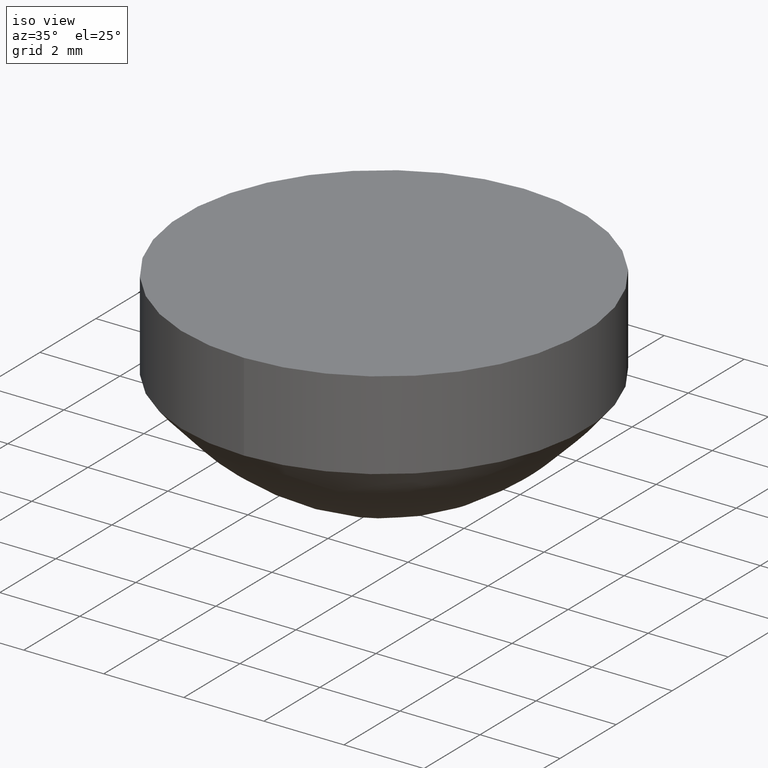
[diagram: clean part render]
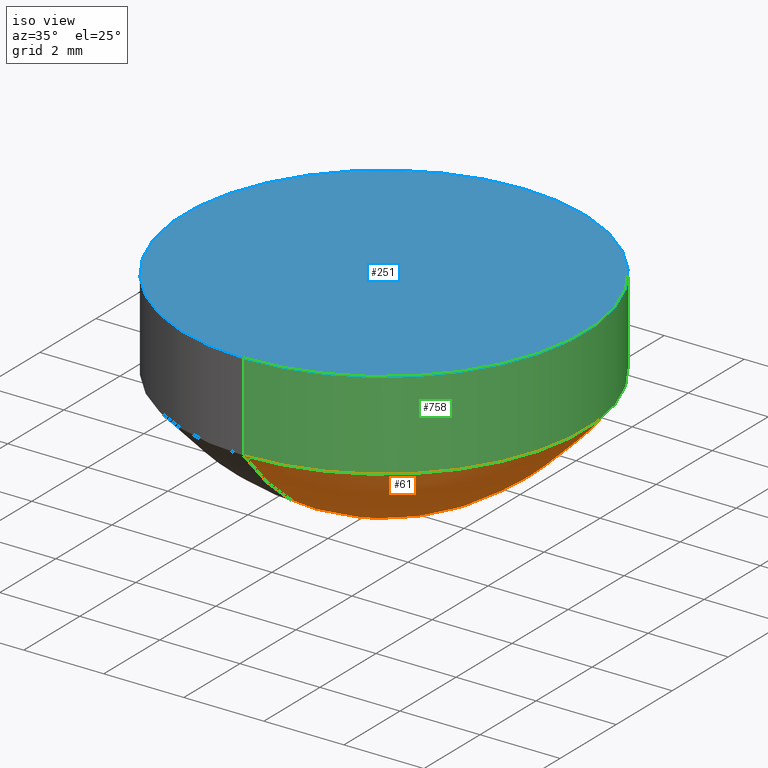
[diagram: same view with three faces highlighted in distinct colors, each labeled with its STEP entity id]
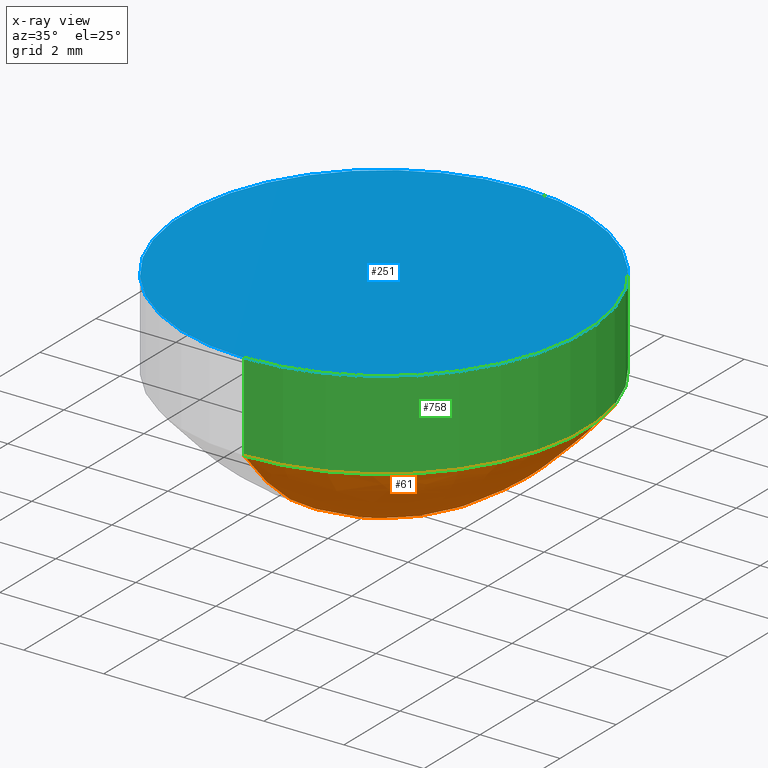
[diagram: x-ray of the same camera — body ghosted, the three highlighted faces saturated]
A machine part, iso view with three faces highlighted in distinct colors.
The next image is the same camera in x-ray (body ghosted, the three faces saturated) — at least one of them is partly hidden behind the body in this view.
Their STEP definitions:

[orange] entity #61 — the highlighted face is a freeform B-spline surface patch.
#1 = CARTESIAN_POINT ( 'NONE',  ( 3.954588622246652868E-16, 1.614583333333329929, 0.2612154173146479796 ) ) ;
#6 = CARTESIAN_POINT ( 'NONE',  ( 1.666666666666665630, 0.8333333333333324822, 0.06877212295435830569 ) ) ;
#8 = CARTESIAN_POINT ( 'NONE',  ( 9.583333333333339255, 4.791666666666666963, 2.539913410714560005 ) ) ;
#11 = CARTESIAN_POINT ( 'NONE',  ( -1.977294311123326434E-16, -1.614583333333329929, 0.2612154173146479796 ) ) ;
#12 = CARTESIAN_POINT ( 'NONE',  ( 1.224646799147353256E-15, 5.000000000000000000, 2.793147640223440309 ) ) ;
#16 = CARTESIAN_POINT ( 'NONE',  ( 0.000000000000000000, 4.635416666666669627, 2.360148127938519913 ) ) ;
#18 = CARTESIAN_POINT ( 'NONE',  ( -4.719992871713760363E-16, -3.854166666666669627, 1.579764289203899885 ) ) ;
#23 = CARTESIAN_POINT ( 'NONE',  ( 0.4166666666666659635, 0.2083333333333328985, 0.004033350387674640436 ) ) ;
#25 = CARTESIAN_POINT ( 'NONE',  ( -4.911343934080535018E-16, -4.010416666666669627, 1.720747009197980182 ) ) ;
#26 = CARTESIAN_POINT ( 'NONE',  ( -2.806482248046021207E-16, -2.291666666666669627, 0.5330940863590959422 ) ) ;
#27 = CARTESIAN_POINT ( 'NONE',  ( 0.2083333333333338977, -0.1041666666666670182, 0.0008064525446619920856 ) ) ;
#29 = CARTESIAN_POINT ( 'NONE',  ( 7.395833333333339255, 3.697916666666668295, 1.445918352819189900 ) ) ;
#30 = CARTESIAN_POINT ( 'NONE',  ( -5.995666620825578906E-16, -4.895833333333330373, 2.664403828816089614 ) ) ;
#32 = CARTESIAN_POINT ( 'NONE',  ( 0.4166666666666659080, -0.2083333333333330650, 0.004033350387674640436 ) ) ;
#34 = CARTESIAN_POINT ( 'NONE',  ( 6.354166666666658081, -3.177083333333330817, 1.048866762044710077 ) ) ;
#35 = CARTESIAN_POINT ( 'NONE',  ( -3.380535435146343200E-16, -2.760416666666669627, 0.7823694013034590000 ) ) ;
#36 = CARTESIAN_POINT ( 'NONE',  ( 0.000000000000000000, 4.947916666666669627, 2.728056462970759988 ) ) ;
#38 = CARTESIAN_POINT ( 'NONE',  ( 9.057283618693975359E-16, 3.697916666666669627, 1.445918352819189900 ) ) ;
#39 = CARTESIAN_POINT ( 'NONE',  ( -3.954588622246665194E-16, -3.229166666666669627, 1.085289345095020064 ) ) ;
#43 = CARTESIAN_POINT ( 'NONE',  ( 7.143772995026234725E-16, 2.916666666666669627, 0.8771974430765130393 ) ) ;
#44 = CARTESIAN_POINT ( 'NONE',  ( -4.464858121891388568E-16, -3.645833333333330373, 1.402859705147299962 ) ) ;
#46 = CARTESIAN_POINT ( 'NONE',  ( 0.000000000000000000, 2.447916666666670071, 0.6104443979704369250 ) ) ;
#48 = CARTESIAN_POINT ( 'NONE',  ( 6.761070870292686401E-16, 2.760416666666669627, 0.7823694013034590000 ) ) ;
#52 = CARTESIAN_POINT ( 'NONE',  ( 5.208333333333340143, 2.604166666666668739, 0.6934955115667149617 ) ) ;
#57 = CARTESIAN_POINT ( 'NONE',  ( 0.000000000000000000, 0.2604166666666670182, 0.006453795416485589957 ) ) ;
#58 = CARTESIAN_POINT ( 'NONE',  ( -3.508102810057518251E-16, -2.864583333333329929, 0.8449215409896569939 ) ) ;
#61 = ADVANCED_FACE ( 'NONE', ( #935 ), #576, .T. ) ;
#65 = CARTESIAN_POINT ( 'NONE',  ( 6.633503495381488178E-16, 2.708333333333329929, 0.7520931647728069658 ) ) ;
#66 = DIRECTION ( 'NONE',  ( 0.000000000000000000, 0.000000000000000000, 1.000000000000000000 ) ) ;
#69 = CARTESIAN_POINT ( 'NONE',  ( 2.708333333333340143, 1.354166666666669405, 0.1830055619264369937 ) ) ;
#73 = CARTESIAN_POINT ( 'NONE',  ( 3.645833333333340143, 1.822916666666669405, 0.3341646850982459838 ) ) ;
#75 = CARTESIAN_POINT ( 'NONE',  ( 9.479166666666658969, -4.739583333333331261, 2.479075565606579268 ) ) ;
#78 = CARTESIAN_POINT ( 'NONE',  ( 3.645833333333338810, -1.822916666666670737, 0.3341646850982459838 ) ) ;
#80 = CARTESIAN_POINT ( 'NONE',  ( 1.097079424236171402E-15, 4.479166666666669627, 2.188558308208239822 ) ) ;
#83 = CARTESIAN_POINT ( 'NONE',  ( -1.020538999289460554E-16, -0.8333333333333329263, 0.06877212295435830569 ) ) ;
#88 = CARTESIAN_POINT ( 'NONE',  ( 1.658375873845373031E-16, 0.6770833333333329263, 0.04525941702231930236 ) ) ;
#92 = CARTESIAN_POINT ( 'NONE',  ( 1.403241124023009618E-16, 0.5729166666666669627, 0.03230819229490249772 ) ) ;
#94 = CARTESIAN_POINT ( 'NONE',  ( 8.020833333333339255, 4.010416666666667851, 1.720747009197980182 ) ) ;
#98 = CARTESIAN_POINT ( 'NONE',  ( 8.929716243782776150E-17, 0.3645833333333330373, 0.01291194472337760073 ) ) ;
#100 = CARTESIAN_POINT ( 'NONE',  ( 7.395833333333337478, -3.697916666666670960, 1.445918352819189900 ) ) ;
#101 = CARTESIAN_POINT ( 'NONE',  ( -3.508102810057518251E-16, -2.864583333333329929, 0.8449215409896569939 ) ) ;
#104 = CARTESIAN_POINT ( 'NONE',  ( -3.189184372779570394E-17, -0.2604166666666670182, 0.006453795416485589957 ) ) ;
#107 = CARTESIAN_POINT ( 'NONE',  ( 9.439985743427520725E-16, 3.854166666666669627, 1.579764289203899885 ) ) ;
#110 = CARTESIAN_POINT ( 'NONE',  ( -6.378368745559127692E-18, -0.05208333333333330095, 0.000000000000000000 ) ) ;
#112 = CARTESIAN_POINT ( 'NONE',  ( 6.979166666666658969, 3.489583333333328152, 1.278226996112129976 ) ) ;
#114 = CARTESIAN_POINT ( 'NONE',  ( 0.000000000000000000, 3.333333333333329929, 1.160287938878900027 ) ) ;
#116 = CARTESIAN_POINT ( 'NONE',  ( 8.541666666666660745, 4.270833333333328596, 1.972133565051860105 ) ) ;
#117 = CARTESIAN_POINT ( 'NONE',  ( -1.211890061656234470E-16, -0.9895833333333330373, 0.09721789164745828216 ) ) ;
#120 = CARTESIAN_POINT ( 'NONE',  ( 7.016205620115036502E-16, 2.864583333333329929, 0.8449215409896569939 ) ) ;
#121 = CARTESIAN_POINT ( 'NONE',  ( -1.785943248756552765E-16, -1.458333333333329929, 0.2125775925363989904 ) ) ;
#123 = EDGE_CURVE ( 'NONE', #237, #259, #645, .T. ) ;
#124 = CARTESIAN_POINT ( 'NONE',  ( 0.000000000000000000, 1.927083333333329929, 0.3741652083103090276 ) ) ;
#126 = CARTESIAN_POINT ( 'NONE',  ( -2.359996435856874265E-16, -1.927083333333329929, 0.3741652083103090276 ) ) ;
#127 = DIRECTION ( 'NONE',  ( 0.000000000000000000, 1.000000000000000000, 0.000000000000000000 ) ) ;
#129 = CARTESIAN_POINT ( 'NONE',  ( 0.000000000000000000, 0.05208333333333330095, 0.000000000000000000 ) ) ;
#131 = CARTESIAN_POINT ( 'NONE',  ( 5.416666666666658969, -2.708333333333330817, 0.7520931647728069658 ) ) ;
#133 = CARTESIAN_POINT ( 'NONE',  ( 0.000000000000000000, 0.7291666666666670737, 0.05255022102027309683 ) ) ;
#135 = CARTESIAN_POINT ( 'NONE',  ( 4.166666666666660745, 2.083333333333329485, 0.4386370034883719793 ) ) ;
#142 = CARTESIAN_POINT ( 'NONE',  ( 6.378368745559140049E-16, 2.604166666666670071, 0.6934955115667149617 ) ) ;
#145 = CARTESIAN_POINT ( 'NONE',  ( 3.229166666666658969, 1.614583333333328818, 0.2612154173146479241 ) ) ;
#149 = CARTESIAN_POINT ( 'NONE',  ( 2.551347498223661246E-16, 1.041666666666670071, 0.1078014655568300117 ) ) ;
#151 = CARTESIAN_POINT ( 'NONE',  ( -5.612964496092031568E-16, -4.583333333333329485, 2.302058484811909889 ) ) ;
#152 = AXIS2_PLACEMENT_3D ( 'NONE', #821, #66, #127 ) ;
#157 = CARTESIAN_POINT ( 'NONE',  ( 2.083333333333339699, -1.041666666666670293, 0.1078014655568299979 ) ) ;
#159 = CARTESIAN_POINT ( 'NONE',  ( 1.135349636709526136E-15, 4.635416666666669627, 2.360148127938519913 ) ) ;
#163 = CARTESIAN_POINT ( 'NONE',  ( 2.168645373490105526E-16, 0.8854166666666670737, 0.07770321952578769509 ) ) ;
#168 = CARTESIAN_POINT ( 'NONE',  ( -8.291879369226865153E-17, -0.6770833333333329263, 0.04525941702231930236 ) ) ;
#170 = CARTESIAN_POINT ( 'NONE',  ( 1.199133324165115781E-15, 4.895833333333330373, 2.664403828816089614 ) ) ;
#174 = CARTESIAN_POINT ( 'NONE',  ( 1.041666666666666075, 0.5208333333333328152, 0.02664777265347659588 ) ) ;
#178 = CARTESIAN_POINT ( 'NONE',  ( 0.000000000000000000, 4.322916666666670515, 2.024935378494410187 ) ) ;
#180 = CARTESIAN_POINT ( 'NONE',  ( -4.273507059524613913E-16, -3.489583333333330373, 1.278226996112129976 ) ) ;
#181 = CARTESIAN_POINT ( 'NONE',  ( -4.273507059524613913E-16, -3.489583333333330373, 1.278226996112129976 ) ) ;
#183 = CARTESIAN_POINT ( 'NONE',  ( 0.7291666666666659635, -0.3645833333333331483, 0.01291194472337759899 ) ) ;
#185 = CARTESIAN_POINT ( 'NONE',  ( 1.007782261798341915E-15, 4.114583333333330373, 1.818804946892209840 ) ) ;
#186 = CARTESIAN_POINT ( 'NONE',  ( -3.571886497513117363E-16, -2.916666666666669627, 0.8771974430765130393 ) ) ;
#187 = CIRCLE ( 'NONE', #152, 5.000000000000000000 ) ;
#189 = CARTESIAN_POINT ( 'NONE',  ( 0.000000000000000000, 3.020833333333330373, 0.9437969569100039813 ) ) ;
#191 = CARTESIAN_POINT ( 'NONE',  ( 7.909177244493330387E-16, 3.229166666666669627, 1.085289345095020064 ) ) ;
#194 = CARTESIAN_POINT ( 'NONE',  ( 0.000000000000000000, 3.645833333333330373, 1.402859705147299962 ) ) ;
#196 = CARTESIAN_POINT ( 'NONE',  ( 8.674581493960426049E-16, 3.541666666666670071, 1.319014030935950155 ) ) ;
#197 = CARTESIAN_POINT ( 'NONE',  ( -2.742698560590422096E-16, -2.239583333333329929, 0.5085603405870479099 ) ) ;
#201 = CARTESIAN_POINT ( 'NONE',  ( 5.104166666666660745, 2.552083333333329040, 0.6651740967401749138 ) ) ;
#202 = CARTESIAN_POINT ( 'NONE',  ( -5.868099245914404349E-16, -4.791666666666669627, 2.539913410714560005 ) ) ;
#206 = CARTESIAN_POINT ( 'NONE',  ( 0.000000000000000000, 1.458333333333329929, 0.2125775925363989904 ) ) ;
#209 = CARTESIAN_POINT ( 'NONE',  ( 5.104166666666659857, -2.552083333333330817, 0.6651740967401749138 ) ) ;
#210 = CARTESIAN_POINT ( 'NONE',  ( -1.275673749111830315E-17, -0.1041666666666670044, 0.0008064525446619920856 ) ) ;
#214 = CARTESIAN_POINT ( 'NONE',  ( -2.423780123312473869E-16, -1.979166666666669849, 0.3950537073087639905 ) ) ;
#217 = CARTESIAN_POINT ( 'NONE',  ( 0.000000000000000000, 1.666666666666670071, 0.2785780285211710283 ) ) ;
#220 = CARTESIAN_POINT ( 'NONE',  ( 4.479166666666658969, -2.239583333333330373, 0.5085603405870479099 ) ) ;
#221 = CARTESIAN_POINT ( 'NONE',  ( -6.378368745559127692E-18, -0.05208333333333330095, 0.000000000000000000 ) ) ;
#226 = CARTESIAN_POINT ( 'NONE',  ( 4.719992871713748530E-16, 1.927083333333329929, 0.3741652083103090276 ) ) ;
#231 = CARTESIAN_POINT ( 'NONE',  ( 2.291666666666659413, 1.145833333333329040, 0.1306355990214130014 ) ) ;
#235 = CARTESIAN_POINT ( 'NONE',  ( 3.333333333333339699, 1.666666666666669183, 0.2785780285211710283 ) ) ;
#237 = VERTEX_POINT ( 'NONE', #381 ) ;
#240 = CARTESIAN_POINT ( 'NONE',  ( 3.541666666666658525, -1.770833333333330595, 0.3150526638210590091 ) ) ;
#242 = CARTESIAN_POINT ( 'NONE',  ( -6.059450308281178018E-16, -4.947916666666669627, 2.728056462970759988 ) ) ;
#246 = CARTESIAN_POINT ( 'NONE',  ( 2.291666666666659413, -1.145833333333330151, 0.1306355990214130014 ) ) ;
#248 = CARTESIAN_POINT ( 'NONE',  ( 9.583333333333337478, -4.791666666666671404, 2.539913410714560005 ) ) ;
#252 = CARTESIAN_POINT ( 'NONE',  ( 1.458333333333334147, 0.7291666666666667407, 0.05255022102027309683 ) ) ;
#254 = CARTESIAN_POINT ( 'NONE',  ( -5.676748183547630680E-16, -4.635416666666669627, 2.360148127938519913 ) ) ;
#257 = CARTESIAN_POINT ( 'NONE',  ( 0.000000000000000000, 4.739583333333330373, 2.479075565606579712 ) ) ;
#259 = VERTEX_POINT ( 'NONE', #622 ) ;
#264 = CARTESIAN_POINT ( 'NONE',  ( 0.000000000000000000, 3.958333333333330373, 1.672952466389409976 ) ) ;
#266 = CARTESIAN_POINT ( 'NONE',  ( 8.645833333333341031, 4.322916666666668739, 2.024935378494410187 ) ) ;
#267 = CARTESIAN_POINT ( 'NONE',  ( -3.699453872424291920E-16, -3.020833333333330373, 0.9437969569100039813 ) ) ;
#270 = CARTESIAN_POINT ( 'NONE',  ( 0.000000000000000000, 0.000000000000000000, 0.000000000000000000 ) ) ;
#272 = CARTESIAN_POINT ( 'NONE',  ( 8.229166666666658969, -4.114583333333331261, 1.818804946892209840 ) ) ;
#273 = CARTESIAN_POINT ( 'NONE',  ( -4.719992871713760363E-16, -3.854166666666669627, 1.579764289203899885 ) ) ;
#274 = CARTESIAN_POINT ( 'NONE',  ( 0.000000000000000000, 3.385416666666669627, 1.198863952823499890 ) ) ;
#277 = CARTESIAN_POINT ( 'NONE',  ( 6.458333333333337478, 3.229166666666667407, 1.085289345095020064 ) ) ;
#281 = CARTESIAN_POINT ( 'NONE',  ( -6.378368745559127230E-17, -0.5208333333333330373, 0.02664777265347659588 ) ) ;
#284 = CARTESIAN_POINT ( 'NONE',  ( -4.528641809346987680E-16, -3.697916666666669627, 1.445918352819189900 ) ) ;
#285 = CARTESIAN_POINT ( 'NONE',  ( -1.467024811478604292E-16, -1.197916666666670071, 0.1428861566637960046 ) ) ;
#286 = CARTESIAN_POINT ( 'NONE',  ( 0.000000000000000000, 1.510416666666670071, 0.2282151980032680050 ) ) ;
#289 = CARTESIAN_POINT ( 'NONE',  ( 6.354166666666658969, 3.177083333333328152, 1.048866762044710077 ) ) ;
#290 = CARTESIAN_POINT ( 'NONE',  ( -2.934049622957196751E-16, -2.395833333333329929, 0.5840361164201749444 ) ) ;
#294 = CARTESIAN_POINT ( 'NONE',  ( 4.583333333333339255, -2.291666666666670071, 0.5330940863590960532 ) ) ;
#297 = CARTESIAN_POINT ( 'NONE',  ( 0.000000000000000000, 1.302083333333329929, 0.1690711392038899974 ) ) ;
#299 = CARTESIAN_POINT ( 'NONE',  ( 5.485397121180844192E-16, 2.239583333333329929, 0.5085603405870479099 ) ) ;
#301 = CARTESIAN_POINT ( 'NONE',  ( -6.378368745559127230E-17, -0.5208333333333330373, 0.02664777265347659588 ) ) ;
#302 = ORIENTED_EDGE ( 'NONE', *, *, #123, .F. ) ;
#305 = CARTESIAN_POINT ( 'NONE',  ( 0.000000000000000000, 0.1041666666666670044, 0.0008064525446619920856 ) ) ;
#307 = CARTESIAN_POINT ( 'NONE',  ( -3.380535435146343200E-16, -2.760416666666669627, 0.7823694013034590000 ) ) ;
#310 = CARTESIAN_POINT ( 'NONE',  ( 0.000000000000000000, 0.5208333333333330373, 0.02664777265347659588 ) ) ;
#312 = CARTESIAN_POINT ( 'NONE',  ( 5.995666620825591725E-16, 2.447916666666670071, 0.6104443979704369250 ) ) ;
#313 = CARTESIAN_POINT ( 'NONE',  ( -8.291879369226865153E-17, -0.6770833333333329263, 0.04525941702231930236 ) ) ;
#318 = CARTESIAN_POINT ( 'NONE',  ( 5.520833333333339255, 2.760416666666668295, 0.7823694013034590000 ) ) ;
#321 = CARTESIAN_POINT ( 'NONE',  ( 2.916666666666658969, -1.458333333333330151, 0.2125775925363989904 ) ) ;
#327 = CARTESIAN_POINT ( 'NONE',  ( 2.423780123312468939E-16, 0.9895833333333330373, 0.09721789164745828216 ) ) ;
#332 = CARTESIAN_POINT ( 'NONE',  ( 2.395833333333339699, -1.197916666666670293, 0.1428861566637960323 ) ) ;
#334 = CARTESIAN_POINT ( 'NONE',  ( 10.00000000000000000, 4.999999999999997335, 2.793147640223440753 ) ) ;
#338 = CARTESIAN_POINT ( 'NONE',  ( 1.458333333333333925, -0.7291666666666672958, 0.05255022102027309683 ) ) ;
#341 = CARTESIAN_POINT ( 'NONE',  ( 9.479166666666660745, 4.739583333333327708, 2.479075565606579268 ) ) ;
#344 = CARTESIAN_POINT ( 'NONE',  ( -1.467024811478604292E-16, -1.197916666666670071, 0.1428861566637960046 ) ) ;
#346 = CARTESIAN_POINT ( 'NONE',  ( -5.995666620825578906E-16, -4.895833333333330373, 2.664403828816089614 ) ) ;
#349 = CARTESIAN_POINT ( 'NONE',  ( 0.000000000000000000, 4.583333333333329485, 2.302058484811909889 ) ) ;
#351 = CARTESIAN_POINT ( 'NONE',  ( 9.312418368516322502E-16, 3.802083333333329929, 1.534370638992780034 ) ) ;
#359 = CARTESIAN_POINT ( 'NONE',  ( 7.708333333333337478, -3.854166666666671404, 1.579764289203900329 ) ) ;
#360 = CARTESIAN_POINT ( 'NONE',  ( -4.082155997157840244E-16, -3.333333333333329929, 1.160287938878900027 ) ) ;
#362 = CARTESIAN_POINT ( 'NONE',  ( 0.000000000000000000, 4.270833333333330373, 1.972133565051859883 ) ) ;
#364 = CARTESIAN_POINT ( 'NONE',  ( 7.083333333333339255, 3.541666666666668295, 1.319014030935950155 ) ) ;
#365 = CARTESIAN_POINT ( 'NONE',  ( -2.997833310412795863E-16, -2.447916666666670071, 0.6104443979704369250 ) ) ;
#366 = CARTESIAN_POINT ( 'NONE',  ( -5.102694996447308933E-17, -0.4166666666666670182, 0.01694964846123230354 ) ) ;
#368 = CARTESIAN_POINT ( 'NONE',  ( -5.102694996447308687E-16, -4.166666666666670515, 1.869068362535480032 ) ) ;
#369 = CARTESIAN_POINT ( 'NONE',  ( -4.528641809346987680E-16, -3.697916666666669627, 1.445918352819189900 ) ) ;
#371 = CARTESIAN_POINT ( 'NONE',  ( 0.000000000000000000, 2.083333333333330373, 0.4386370034883719793 ) ) ;
#373 = CARTESIAN_POINT ( 'NONE',  ( 7.083333333333338366, -3.541666666666670960, 1.319014030935950155 ) ) ;
#374 = CARTESIAN_POINT ( 'NONE',  ( -2.359996435856874265E-16, -1.927083333333329929, 0.3741652083103090276 ) ) ;
#376 = CARTESIAN_POINT ( 'NONE',  ( 0.000000000000000000, 1.770833333333329929, 0.3150526638210590091 ) ) ;
#378 = CARTESIAN_POINT ( 'NONE',  ( 6.250801370647940840E-16, 2.552083333333330373, 0.6651740967401749138 ) ) ;
#379 = CARTESIAN_POINT ( 'NONE',  ( -5.038911308991709575E-16, -4.114583333333330373, 1.818804946892209840 ) ) ;
#381 = CARTESIAN_POINT ( 'NONE',  ( 0.000000000000000000, 5.000000000000000000, 2.793147640223440309 ) ) ;
#383 = CARTESIAN_POINT ( 'NONE',  ( 7.526475119759783049E-16, 3.072916666666670071, 0.9781205686555799472 ) ) ;
#386 = CARTESIAN_POINT ( 'NONE',  ( 0.000000000000000000, 2.239583333333329929, 0.5085603405870479099 ) ) ;
#388 = CARTESIAN_POINT ( 'NONE',  ( 4.895833333333339255, 2.447916666666668295, 0.6104443979704369250 ) ) ;
#392 = CARTESIAN_POINT ( 'NONE',  ( 5.833333333333339255, 2.916666666666668295, 0.8771974430765129283 ) ) ;
#397 = CARTESIAN_POINT ( 'NONE',  ( -2.232429060945700200E-16, -1.822916666666670071, 0.3341646850982459838 ) ) ;
#403 = CARTESIAN_POINT ( 'NONE',  ( 3.020833333333339699, -1.510416666666670515, 0.2282151980032680050 ) ) ;
#408 = CARTESIAN_POINT ( 'NONE',  ( 2.806482248046009375E-16, 1.145833333333329929, 0.1306355990214130014 ) ) ;
#410 = CARTESIAN_POINT ( 'NONE',  ( 9.999999999999998224, -5.000000000000000888, 2.793147640223440753 ) ) ;
#413 = CARTESIAN_POINT ( 'NONE',  ( -1.211890061656234470E-16, -0.9895833333333330373, 0.09721789164745828216 ) ) ;
#415 = CARTESIAN_POINT ( 'NONE',  ( 8.854166666666657193, -4.427083333333330373, 2.133147733373759625 ) ) ;
#420 = CARTESIAN_POINT ( 'NONE',  ( 3.229166666666658081, -1.614583333333330151, 0.2612154173146479241 ) ) ;
#425 = CARTESIAN_POINT ( 'NONE',  ( -7.016205620115048088E-17, -0.5729166666666669627, 0.03230819229490249772 ) ) ;
#430 = CARTESIAN_POINT ( 'NONE',  ( 0.000000000000000000, 5.000000000000000000, 2.793147640223440309 ) ) ;
#432 = CARTESIAN_POINT ( 'NONE',  ( 8.645833333333337478, -4.322916666666671404, 2.024935378494410187 ) ) ;
#436 = CARTESIAN_POINT ( 'NONE',  ( 0.5208333333333339255, -0.2604166666666670737, 0.006453795416485589957 ) ) ;
#438 = CARTESIAN_POINT ( 'NONE',  ( -4.082155997157840244E-16, -3.333333333333329929, 1.160287938878900027 ) ) ;
#443 = CARTESIAN_POINT ( 'NONE',  ( 6.378368745559140789E-17, 0.2604166666666670182, 0.006453795416485589957 ) ) ;
#445 = CARTESIAN_POINT ( 'NONE',  ( -4.145939684613439356E-16, -3.385416666666669627, 1.198863952823499890 ) ) ;
#448 = CARTESIAN_POINT ( 'NONE',  ( 0.000000000000000000, 0.000000000000000000, 0.000000000000000000 ) ) ;
#450 = CARTESIAN_POINT ( 'NONE',  ( 6.666666666666659857, 3.333333333333328596, 1.160287938878900027 ) ) ;
#451 = CARTESIAN_POINT ( 'NONE',  ( -5.804315558458805237E-16, -4.739583333333330373, 2.479075565606579712 ) ) ;
#453 = CARTESIAN_POINT ( 'NONE',  ( 5.102694996447297223E-17, 0.2083333333333330095, 0.004033350387674640436 ) ) ;
#455 = CARTESIAN_POINT ( 'NONE',  ( 7.708333333333340143, 3.854166666666668739, 1.579764289203900329 ) ) ;
#460 = CARTESIAN_POINT ( 'NONE',  ( 6.041666666666658081, -3.020833333333331261, 0.9437969569100038703 ) ) ;
#461 = CARTESIAN_POINT ( 'NONE',  ( -5.485397121180857011E-16, -4.479166666666669627, 2.188558308208239822 ) ) ;
#463 = CARTESIAN_POINT ( 'NONE',  ( 0.000000000000000000, 0.4166666666666670182, 0.01694964846123230354 ) ) ;
#465 = CARTESIAN_POINT ( 'NONE',  ( -3.316751747690744089E-16, -2.708333333333329929, 0.7520931647728069658 ) ) ;
#470 = CARTESIAN_POINT ( 'NONE',  ( -3.699453872424291920E-16, -3.020833333333330373, 0.9437969569100039813 ) ) ;
#471 = CARTESIAN_POINT ( 'NONE',  ( -2.551347498223648612E-17, -0.2083333333333330095, 0.004033350387674640436 ) ) ;
#475 = CARTESIAN_POINT ( 'NONE',  ( 3.958333333333339699, 1.979166666666669183, 0.3950537073087639905 ) ) ;
#478 = CARTESIAN_POINT ( 'NONE',  ( 0.000000000000000000, 0.2083333333333330095, 0.004033350387674640436 ) ) ;
#479 = CARTESIAN_POINT ( 'NONE',  ( 4.895833333333338366, -2.447916666666670071, 0.6104443979704369250 ) ) ;
#484 = CARTESIAN_POINT ( 'NONE',  ( 4.464858121891400401E-16, 1.822916666666670071, 0.3341646850982459838 ) ) ;
#487 = CARTESIAN_POINT ( 'NONE',  ( -1.658375873845378207E-16, -1.354166666666670071, 0.1830055619264369937 ) ) ;
#489 = CARTESIAN_POINT ( 'NONE',  ( 9.166666666666658969, 4.583333333333326820, 2.302058484811909889 ) ) ;
#493 = CARTESIAN_POINT ( 'NONE',  ( 1.770833333333333925, 0.8854166666666666297, 0.07770321952578769509 ) ) ;
#495 = CARTESIAN_POINT ( 'NONE',  ( 8.958333333333337478, -4.479166666666670515, 2.188558308208239822 ) ) ;
#498 = CARTESIAN_POINT ( 'NONE',  ( -2.168645373490100596E-16, -1.770833333333329929, 0.3150526638210590091 ) ) ;
#500 = CARTESIAN_POINT ( 'NONE',  ( 1.160863111691761047E-15, 4.739583333333330373, 2.479075565606579712 ) ) ;
#504 = CARTESIAN_POINT ( 'NONE',  ( 1.354166666666665630, -0.6770833333333331483, 0.04525941702231930236 ) ) ;
#510 = CARTESIAN_POINT ( 'NONE',  ( 1.275673749111825446E-16, 0.5208333333333330373, 0.02664777265347659588 ) ) ;
#511 = CARTESIAN_POINT ( 'NONE',  ( 9.822687868161070035E-16, 4.010416666666669627, 1.720747009197980182 ) ) ;
#515 = CARTESIAN_POINT ( 'NONE',  ( 1.275673749111825538E-17, 0.05208333333333330095, 0.000000000000000000 ) ) ;
#517 = CARTESIAN_POINT ( 'NONE',  ( 7.916666666666660745, 3.958333333333328152, 1.672952466389410198 ) ) ;
#518 = CARTESIAN_POINT ( 'NONE',  ( -5.612964496092031568E-16, -4.583333333333329485, 2.302058484811909889 ) ) ;
#521 = CARTESIAN_POINT ( 'NONE',  ( 0.5208333333333340365, 0.2604166666666669072, 0.006453795416485589957 ) ) ;
#523 = CARTESIAN_POINT ( 'NONE',  ( 8.547014119049227826E-16, 3.489583333333330373, 1.278226996112129976 ) ) ;
#524 = CARTESIAN_POINT ( 'NONE',  ( -1.849726936212152369E-16, -1.510416666666670071, 0.2282151980032680050 ) ) ;
#526 = CARTESIAN_POINT ( 'NONE',  ( 0.8333333333333339255, 0.4166666666666667962, 0.01694964846123230354 ) ) ;
#529 = CARTESIAN_POINT ( 'NONE',  ( 8.020833333333337478, -4.010416666666670515, 1.720747009197980182 ) ) ;
#530 = CARTESIAN_POINT ( 'NONE',  ( -3.763237559879891525E-16, -3.072916666666670071, 0.9781205686555799472 ) ) ;
#531 = CARTESIAN_POINT ( 'NONE',  ( 0.000000000000000000, 3.072916666666670071, 0.9781205686555799472 ) ) ;
#533 = CARTESIAN_POINT ( 'NONE',  ( 7.781609869582132164E-16, 3.177083333333329929, 1.048866762044709855 ) ) ;
#534 = CARTESIAN_POINT ( 'NONE',  ( -5.421613433725257899E-16, -4.427083333333329485, 2.133147733373760069 ) ) ;
#537 = CARTESIAN_POINT ( 'NONE',  ( 5.416666666666659857, 2.708333333333328596, 0.7520931647728069658 ) ) ;
#538 = CARTESIAN_POINT ( 'NONE',  ( -2.168645373490100596E-16, -1.770833333333329929, 0.3150526638210590091 ) ) ;
#543 = CARTESIAN_POINT ( 'NONE',  ( 4.847560246624947739E-16, 1.979166666666669849, 0.3950537073087639905 ) ) ;
#546 = CARTESIAN_POINT ( 'NONE',  ( 0.000000000000000000, 2.395833333333329929, 0.5840361164201749444 ) ) ;
#548 = CARTESIAN_POINT ( 'NONE',  ( 5.729166666666658969, -2.864583333333330817, 0.8449215409896571050 ) ) ;
#549 = CARTESIAN_POINT ( 'NONE',  ( -3.189184372779570394E-17, -0.2604166666666670182, 0.006453795416485589957 ) ) ;
#552 = CARTESIAN_POINT ( 'NONE',  ( 0.000000000000000000, 1.145833333333329929, 0.1306355990214130014 ) ) ;
#553 = CARTESIAN_POINT ( 'NONE',  ( 3.854166666666658525, -1.927083333333330373, 0.3741652083103090276 ) ) ;
#555 = CARTESIAN_POINT ( 'NONE',  ( 0.000000000000000000, 0.000000000000000000, 0.000000000000000000 ) ) ;
#558 = CARTESIAN_POINT ( 'NONE',  ( 5.833333333333339255, -2.916666666666670960, 0.8771974430765129283 ) ) ;
#563 = CARTESIAN_POINT ( 'NONE',  ( -1.785943248756552765E-16, -1.458333333333329929, 0.2125775925363989904 ) ) ;
#567 = CARTESIAN_POINT ( 'NONE',  ( 2.395833333333339699, 1.197916666666669405, 0.1428861566637960323 ) ) ;
#569 = CARTESIAN_POINT ( 'NONE',  ( -5.868099245914404349E-16, -4.791666666666669627, 2.539913410714560005 ) ) ;
#573 = CARTESIAN_POINT ( 'NONE',  ( 3.541666666666659857, 1.770833333333329263, 0.3150526638210590091 ) ) ;
#576 =( BOUNDED_SURFACE ( )  B_SPLINE_SURFACE ( 3, 3, ( 
 ( #589, #410, #334, #12 ),
 ( #242, #832, #741, #1080 ),
 ( #346, #1013, #667, #170 ),
 ( #569, #248, #8, #918 ),
 ( #655, #75, #341, #500 ),
 ( #254, #994, #924, #159 ),
 ( #151, #593, #489, #746 ),
 ( #659, #495, #836, #80 ),
 ( #841, #415, #751, #582 ),
 ( #1008, #432, #266, #615 ),
 ( #609, #599, #116, #854 ),
 ( #368, #1025, #945, #864 ),
 ( #780, #272, #1019, #185 ),
 ( #25, #529, #94, #511 ),
 ( #788, #768, #517, #701 ),
 ( #18, #359, #455, #107 ),
 ( #1035, #957, #869, #351 ),
 ( #284, #100, #29, #38 ),
 ( #604, #859, #685, #940 ),
 ( #873, #373, #364, #196 ),
 ( #180, #697, #112, #523 ),
 ( #445, #693, #1029, #961 ),
 ( #438, #706, #450, #784 ),
 ( #950, #774, #277, #191 ),
 ( #1040, #34, #289, #533 ),
 ( #619, #814, #636, #383 ),
 ( #470, #460, #712, #796 ),
 ( #732, #558, #392, #43 ),
 ( #58, #548, #891, #120 ),
 ( #307, #807, #318, #48 ),
 ( #465, #131, #537, #65 ),
 ( #1066, #886, #52, #142 ),
 ( #716, #209, #201, #378 ),
 ( #902, #479, #388, #312 ),
 ( #1045, #721, #895, #1051 ),
 ( #1072, #294, #977, #642 ),
 ( #1060, #220, #649, #299 ),
 ( #820, #802, #632, #981 ),
 ( #972, #625, #135, #966 ),
 ( #214, #878, #475, #543 ),
 ( #126, #553, #727, #226 ),
 ( #397, #78, #73, #484 ),
 ( #498, #240, #573, #905 ),
 ( #909, #825, #235, #581 ),
 ( #11, #420, #145, #1 ),
 ( #835, #403, #760, #755 ),
 ( #563, #321, #653, #671 ),
 ( #487, #663, #69, #831 ),
 ( #992, #917, #739, #1078 ),
 ( #344, #332, #567, #587 ),
 ( #1006, #246, #231, #408 ),
 ( #1002, #157, #744, #149 ),
 ( #413, #1083, #922, #327 ),
 ( #839, #658, #493, #163 ),
 ( #83, #986, #6, #997 ),
 ( #749, #338, #252, #927 ),
 ( #168, #504, #845, #88 ),
 ( #425, #771, #699, #92 ),
 ( #281, #597, #174, #510 ),
 ( #366, #943, #526, #786 ),
 ( #862, #183, #867, #98 ),
 ( #104, #436, #521, #443 ),
 ( #778, #32, #23, #453 ),
 ( #857, #27, #954, #678 ),
 ( #110, #1023, #592, #515 ),
 ( #270, #1016, #448, #1032 ) ),
 .UNSPECIFIED., .F., .F., .F. ) 
 B_SPLINE_SURFACE_WITH_KNOTS ( ( 4, 2, 2, 2, 2, 2, 2, 2, 2, 2, 2, 2, 2, 2, 2, 2, 2, 2, 2, 2, 2, 2, 2, 2, 2, 2, 2, 2, 2, 2, 2, 2, 4 ),
 ( 4, 4 ),
 ( -1.000000000000000000, -0.9687500000000000000, -0.9375000000000000000, -0.9062500000000000000, -0.8750000000000000000, -0.8437500000000000000, -0.8125000000000000000, -0.7812500000000000000, -0.7500000000000000000, -0.7187500000000000000, -0.6875000000000000000, -0.6562500000000000000, -0.6250000000000000000, -0.5937500000000000000, -0.5625000000000000000, -0.5312500000000000000, -0.5000000000000000000, -0.4687500000000000000, -0.4375000000000000000, -0.4062500000000000000, -0.3750000000000000000, -0.3437500000000000000, -0.3125000000000000000, -0.2812500000000000000, -0.2500000000000000000, -0.2187500000000000000, -0.1875000000000000000, -0.1562500000000000000, -0.1250000000000000000, -0.09375000000000000000, -0.06250000000000000000, -0.03125000000000000000, 0.000000000000000000 ),
 ( 0.000000000000000000, 1.000000000000000000 ),
 .UNSPECIFIED. ) 
 GEOMETRIC_REPRESENTATION_ITEM ( )  RATIONAL_B_SPLINE_SURFACE ( (
 ( 1.000000000000000000, 0.3333333333333334259, 0.3333333333333334259, 1.000000000000000000),
 ( 1.000000000000000000, 0.3333333333333334259, 0.3333333333333334259, 1.000000000000000000),
 ( 1.000000000000000000, 0.3333333333333334259, 0.3333333333333334259, 1.000000000000000000),
 ( 1.000000000000000000, 0.3333333333333334259, 0.3333333333333334259, 1.000000000000000000),
 ( 1.000000000000000000, 0.3333333333333334259, 0.3333333333333334259, 1.000000000000000000),
 ( 1.000000000000000000, 0.3333333333333334259, 0.3333333333333334259, 1.000000000000000000),
 ( 1.000000000000000000, 0.3333333333333334259, 0.3333333333333334259, 1.000000000000000000),
 ( 1.000000000000000000, 0.3333333333333334259, 0.3333333333333334259, 1.000000000000000000),
 ( 1.000000000000000000, 0.3333333333333334259, 0.3333333333333334259, 1.000000000000000000),
 ( 1.000000000000000000, 0.3333333333333334259, 0.3333333333333334259, 1.000000000000000000),
 ( 1.000000000000000000, 0.3333333333333334259, 0.3333333333333334259, 1.000000000000000000),
 ( 1.000000000000000000, 0.3333333333333334259, 0.3333333333333334259, 1.000000000000000000),
 ( 1.000000000000000000, 0.3333333333333334259, 0.3333333333333334259, 1.000000000000000000),
 ( 1.000000000000000000, 0.3333333333333334259, 0.3333333333333334259, 1.000000000000000000),
 ( 1.000000000000000000, 0.3333333333333334259, 0.3333333333333334259, 1.000000000000000000),
 ( 1.000000000000000000, 0.3333333333333334259, 0.3333333333333334259, 1.000000000000000000),
 ( 1.000000000000000000, 0.3333333333333334259, 0.3333333333333334259, 1.000000000000000000),
 ( 1.000000000000000000, 0.3333333333333334259, 0.3333333333333334259, 1.000000000000000000),
 ( 1.000000000000000000, 0.3333333333333334259, 0.3333333333333334259, 1.000000000000000000),
 ( 1.000000000000000000, 0.3333333333333334259, 0.3333333333333334259, 1.000000000000000000),
 ( 1.000000000000000000, 0.3333333333333334259, 0.3333333333333334259, 1.000000000000000000),
 ( 1.000000000000000000, 0.3333333333333334259, 0.3333333333333334259, 1.000000000000000000),
 ( 1.000000000000000000, 0.3333333333333334259, 0.3333333333333334259, 1.000000000000000000),
 ( 1.000000000000000000, 0.3333333333333334259, 0.3333333333333334259, 1.000000000000000000),
 ( 1.000000000000000000, 0.3333333333333334259, 0.3333333333333334259, 1.000000000000000000),
 ( 1.000000000000000000, 0.3333333333333334259, 0.3333333333333334259, 1.000000000000000000),
 ( 1.000000000000000000, 0.3333333333333334259, 0.3333333333333334259, 1.000000000000000000),
 ( 1.000000000000000000, 0.3333333333333334259, 0.3333333333333334259, 1.000000000000000000),
 ( 1.000000000000000000, 0.3333333333333334259, 0.3333333333333334259, 1.000000000000000000),
 ( 1.000000000000000000, 0.3333333333333334259, 0.3333333333333334259, 1.000000000000000000),
 ( 1.000000000000000000, 0.3333333333333334259, 0.3333333333333334259, 1.000000000000000000),
 ( 1.000000000000000000, 0.3333333333333334259, 0.3333333333333334259, 1.000000000000000000),
 ( 1.000000000000000000, 0.3333333333333334259, 0.3333333333333334259, 1.000000000000000000),
 ( 1.000000000000000000, 0.3333333333333334259, 0.3333333333333334259, 1.000000000000000000),
 ( 1.000000000000000000, 0.3333333333333334259, 0.3333333333333334259, 1.000000000000000000),
 ( 1.000000000000000000, 0.3333333333333334259, 0.3333333333333334259, 1.000000000000000000),
 ( 1.000000000000000000, 0.3333333333333334259, 0.3333333333333334259, 1.000000000000000000),
 ( 1.000000000000000000, 0.3333333333333334259, 0.3333333333333334259, 1.000000000000000000),
 ( 1.000000000000000000, 0.3333333333333334259, 0.3333333333333334259, 1.000000000000000000),
 ( 1.000000000000000000, 0.3333333333333334259, 0.3333333333333334259, 1.000000000000000000),
 ( 1.000000000000000000, 0.3333333333333334259, 0.3333333333333334259, 1.000000000000000000),
 ( 1.000000000000000000, 0.3333333333333334259, 0.3333333333333334259, 1.000000000000000000),
 ( 1.000000000000000000, 0.3333333333333334259, 0.3333333333333334259, 1.000000000000000000),
 ( 1.000000000000000000, 0.3333333333333334259, 0.3333333333333334259, 1.000000000000000000),
 ( 1.000000000000000000, 0.3333333333333334259, 0.3333333333333334259, 1.000000000000000000),
 ( 1.000000000000000000, 0.3333333333333334259, 0.3333333333333334259, 1.000000000000000000),
 ( 1.000000000000000000, 0.3333333333333334259, 0.3333333333333334259, 1.000000000000000000),
 ( 1.000000000000000000, 0.3333333333333334259, 0.3333333333333334259, 1.000000000000000000),
 ( 1.000000000000000000, 0.3333333333333334259, 0.3333333333333334259, 1.000000000000000000),
 ( 1.000000000000000000, 0.3333333333333334259, 0.3333333333333334259, 1.000000000000000000),
 ( 1.000000000000000000, 0.3333333333333334259, 0.3333333333333334259, 1.000000000000000000),
 ( 1.000000000000000000, 0.3333333333333334259, 0.3333333333333334259, 1.000000000000000000),
 ( 1.000000000000000000, 0.3333333333333334259, 0.3333333333333334259, 1.000000000000000000),
 ( 1.000000000000000000, 0.3333333333333334259, 0.3333333333333334259, 1.000000000000000000),
 ( 1.000000000000000000, 0.3333333333333334259, 0.3333333333333334259, 1.000000000000000000),
 ( 1.000000000000000000, 0.3333333333333334259, 0.3333333333333334259, 1.000000000000000000),
 ( 1.000000000000000000, 0.3333333333333334259, 0.3333333333333334259, 1.000000000000000000),
 ( 1.000000000000000000, 0.3333333333333334259, 0.3333333333333334259, 1.000000000000000000),
 ( 1.000000000000000000, 0.3333333333333334259, 0.3333333333333334259, 1.000000000000000000),
 ( 1.000000000000000000, 0.3333333333333334259, 0.3333333333333334259, 1.000000000000000000),
 ( 1.000000000000000000, 0.3333333333333334259, 0.3333333333333334259, 1.000000000000000000),
 ( 1.000000000000000000, 0.3333333333333334259, 0.3333333333333334259, 1.000000000000000000),
 ( 1.000000000000000000, 0.3333333333333334259, 0.3333333333333334259, 1.000000000000000000),
 ( 1.000000000000000000, 0.3333333333333334259, 0.3333333333333334259, 1.000000000000000000),
 ( 1.000000000000000000, 0.3333333333333334259, 0.3333333333333334259, 1.000000000000000000),
 ( 1.000000000000000000, 0.3333333333333334259, 0.3333333333333334259, 1.000000000000000000) ) ) 
 REPRESENTATION_ITEM ( '' )  SURFACE ( )  );
#581 = CARTESIAN_POINT ( 'NONE',  ( 4.082155997157852077E-16, 1.666666666666670071, 0.2785780285211710283 ) ) ;
#582 = CARTESIAN_POINT ( 'NONE',  ( 1.084322686745051580E-15, 4.427083333333329485, 2.133147733373760069 ) ) ;
#587 = CARTESIAN_POINT ( 'NONE',  ( 2.934049622957208584E-16, 1.197916666666670071, 0.1428861566637960046 ) ) ;
#589 = CARTESIAN_POINT ( 'NONE',  ( -6.123233995736766282E-16, -5.000000000000000000, 2.793147640223440309 ) ) ;
#592 = CARTESIAN_POINT ( 'NONE',  ( 0.1041666666666666019, 0.05208333333333328014, 0.000000000000000000 ) ) ;
#593 = CARTESIAN_POINT ( 'NONE',  ( 9.166666666666658969, -4.583333333333331261, 2.302058484811909889 ) ) ;
#597 = CARTESIAN_POINT ( 'NONE',  ( 1.041666666666665853, -0.5208333333333330373, 0.02664777265347659588 ) ) ;
#599 = CARTESIAN_POINT ( 'NONE',  ( 8.541666666666658969, -4.270833333333331261, 1.972133565051860105 ) ) ;
#600 = CARTESIAN_POINT ( 'NONE',  ( -2.232429060945700200E-16, -1.822916666666670071, 0.3341646850982459838 ) ) ;
#602 = CARTESIAN_POINT ( 'NONE',  ( 0.000000000000000000, 4.010416666666669627, 1.720747009197980182 ) ) ;
#604 = CARTESIAN_POINT ( 'NONE',  ( -4.464858121891388568E-16, -3.645833333333330373, 1.402859705147299962 ) ) ;
#605 = CARTESIAN_POINT ( 'NONE',  ( -3.316751747690744089E-16, -2.708333333333329929, 0.7520931647728069658 ) ) ;
#607 = CARTESIAN_POINT ( 'NONE',  ( 0.000000000000000000, 3.229166666666669627, 1.085289345095020064 ) ) ;
#609 = CARTESIAN_POINT ( 'NONE',  ( -5.230262371358484230E-16, -4.270833333333330373, 1.972133565051859883 ) ) ;
#610 = CARTESIAN_POINT ( 'NONE',  ( -5.294046058814083342E-16, -4.322916666666670515, 2.024935378494410187 ) ) ;
#613 = CARTESIAN_POINT ( 'NONE',  ( 0.000000000000000000, 4.479166666666669627, 2.188558308208239822 ) ) ;
#615 = CARTESIAN_POINT ( 'NONE',  ( 1.058809211762816668E-15, 4.322916666666670515, 2.024935378494410187 ) ) ;
#616 = CARTESIAN_POINT ( 'NONE',  ( -4.656209184258161251E-16, -3.802083333333329929, 1.534370638992780034 ) ) ;
#617 = CARTESIAN_POINT ( 'NONE',  ( 0.000000000000000000, 0.8854166666666670737, 0.07770321952578769509 ) ) ;
#619 = CARTESIAN_POINT ( 'NONE',  ( -3.763237559879891525E-16, -3.072916666666670071, 0.9781205686555799472 ) ) ;
#620 = CARTESIAN_POINT ( 'NONE',  ( -2.615131185679248031E-16, -2.135416666666670071, 0.4613317976900179751 ) ) ;
#622 = CARTESIAN_POINT ( 'NONE',  ( 0.000000000000000000, 0.000000000000000000, 0.000000000000000000 ) ) ;
#625 = CARTESIAN_POINT ( 'NONE',  ( 4.166666666666659857, -2.083333333333330817, 0.4386370034883719793 ) ) ;
#630 = CARTESIAN_POINT ( 'NONE',  ( 0.000000000000000000, 2.708333333333329929, 0.7520931647728069658 ) ) ;
#632 = CARTESIAN_POINT ( 'NONE',  ( 4.270833333333340143, 2.135416666666669183, 0.4613317976900179751 ) ) ;
#636 = CARTESIAN_POINT ( 'NONE',  ( 6.145833333333338366, 3.072916666666668739, 0.9781205686555800582 ) ) ;
#642 = CARTESIAN_POINT ( 'NONE',  ( 5.612964496092042415E-16, 2.291666666666669627, 0.5330940863590959422 ) ) ;
#645 = B_SPLINE_CURVE_WITH_KNOTS ( 'NONE', 3,
 ( #430, #36, #782, #766, #257, #16, #349, #613, #683, #178, #362, #932, #690, #602, #264, #695, #852, #938, #194, #1011, #1027, #274, #114, #607, #948, #531, #189, #871, #714, #805, #630, #884, #876, #46, #546, #964, #386, #1038, #371, #975, #124, #704, #376, #217, #1049, #286, #206, #1064, #297, #709, #552, #812, #719, #617, #1058, #133, #1043, #970, #310, #463, #799, #57, #478, #305, #129, #555 ),
 .UNSPECIFIED., .F., .F.,
 ( 4, 2, 2, 2, 2, 2, 2, 2, 2, 2, 2, 2, 2, 2, 2, 2, 2, 2, 2, 2, 2, 2, 2, 2, 2, 2, 2, 2, 2, 2, 2, 2, 4 ),
 ( -1.000000000000000000, -0.9687500000000000000, -0.9375000000000000000, -0.9062500000000000000, -0.8750000000000000000, -0.8437500000000000000, -0.8125000000000000000, -0.7812500000000000000, -0.7500000000000000000, -0.7187500000000000000, -0.6875000000000000000, -0.6562500000000000000, -0.6250000000000000000, -0.5937500000000000000, -0.5625000000000000000, -0.5312500000000000000, -0.5000000000000000000, -0.4687500000000000000, -0.4375000000000000000, -0.4062500000000000000, -0.3750000000000000000, -0.3437500000000000000, -0.3125000000000000000, -0.2812500000000000000, -0.2500000000000000000, -0.2187500000000000000, -0.1875000000000000000, -0.1562500000000000000, -0.1250000000000000000, -0.09375000000000000000, -0.06250000000000000000, -0.03125000000000000000, 0.000000000000000000 ),
 .UNSPECIFIED. ) ;
#649 = CARTESIAN_POINT ( 'NONE',  ( 4.479166666666659857, 2.239583333333328596, 0.5085603405870479099 ) ) ;
#653 = CARTESIAN_POINT ( 'NONE',  ( 2.916666666666659857, 1.458333333333329263, 0.2125775925363989904 ) ) ;
#655 = CARTESIAN_POINT ( 'NONE',  ( -5.804315558458805237E-16, -4.739583333333330373, 2.479075565606579712 ) ) ;
#658 = CARTESIAN_POINT ( 'NONE',  ( 1.770833333333333481, -0.8854166666666672958, 0.07770321952578769509 ) ) ;
#659 = CARTESIAN_POINT ( 'NONE',  ( -5.485397121180857011E-16, -4.479166666666669627, 2.188558308208239822 ) ) ;
#663 = CARTESIAN_POINT ( 'NONE',  ( 2.708333333333339699, -1.354166666666670515, 0.1830055619264369937 ) ) ;
#667 = CARTESIAN_POINT ( 'NONE',  ( 9.791666666666660745, 4.895833333333327708, 2.664403828816089614 ) ) ;
#671 = CARTESIAN_POINT ( 'NONE',  ( 3.571886497513105530E-16, 1.458333333333329929, 0.2125775925363989904 ) ) ;
#678 = CARTESIAN_POINT ( 'NONE',  ( 2.551347498223660630E-17, 0.1041666666666670044, 0.0008064525446619920856 ) ) ;
#683 = CARTESIAN_POINT ( 'NONE',  ( 0.000000000000000000, 4.427083333333329485, 2.133147733373760069 ) ) ;
#685 = CARTESIAN_POINT ( 'NONE',  ( 7.291666666666659857, 3.645833333333328596, 1.402859705147299962 ) ) ;
#690 = CARTESIAN_POINT ( 'NONE',  ( 0.000000000000000000, 4.114583333333330373, 1.818804946892209840 ) ) ;
#693 = CARTESIAN_POINT ( 'NONE',  ( 6.770833333333337478, -3.385416666666670515, 1.198863952823499890 ) ) ;
#694 = CARTESIAN_POINT ( 'NONE',  ( -2.041077998578926038E-16, -1.666666666666670071, 0.2785780285211710283 ) ) ;
#695 = CARTESIAN_POINT ( 'NONE',  ( 0.000000000000000000, 3.854166666666669627, 1.579764289203899885 ) ) ;
#697 = CARTESIAN_POINT ( 'NONE',  ( 6.979166666666658969, -3.489583333333330817, 1.278226996112129976 ) ) ;
#698 = CARTESIAN_POINT ( 'NONE',  ( 6.123233995736766282E-16, -5.000000000000000000, 2.793147640223440309 ) ) ;
#699 = CARTESIAN_POINT ( 'NONE',  ( 1.145833333333334147, 0.5729166666666667407, 0.03230819229490249772 ) ) ;
#701 = CARTESIAN_POINT ( 'NONE',  ( 9.695120493249871812E-16, 3.958333333333330373, 1.672952466389409976 ) ) ;
#702 = CARTESIAN_POINT ( 'NONE',  ( -2.423780123312473869E-16, -1.979166666666669849, 0.3950537073087639905 ) ) ;
#704 = CARTESIAN_POINT ( 'NONE',  ( 0.000000000000000000, 1.822916666666670071, 0.3341646850982459838 ) ) ;
#706 = CARTESIAN_POINT ( 'NONE',  ( 6.666666666666658081, -3.333333333333331261, 1.160287938878900027 ) ) ;
#707 = CARTESIAN_POINT ( 'NONE',  ( -1.084322686745052763E-16, -0.8854166666666670737, 0.07770321952578769509 ) ) ;
#709 = CARTESIAN_POINT ( 'NONE',  ( 0.000000000000000000, 1.197916666666670071, 0.1428861566637960046 ) ) ;
#712 = CARTESIAN_POINT ( 'NONE',  ( 6.041666666666659857, 3.020833333333329040, 0.9437969569100038703 ) ) ;
#714 = CARTESIAN_POINT ( 'NONE',  ( 0.000000000000000000, 2.864583333333329929, 0.8449215409896569939 ) ) ;
#716 = CARTESIAN_POINT ( 'NONE',  ( -3.125400685323970420E-16, -2.552083333333330373, 0.6651740967401749138 ) ) ;
#719 = CARTESIAN_POINT ( 'NONE',  ( 0.000000000000000000, 0.9895833333333330373, 0.09721789164745828216 ) ) ;
#721 = CARTESIAN_POINT ( 'NONE',  ( 4.791666666666658969, -2.395833333333330373, 0.5840361164201749444 ) ) ;
#722 = CARTESIAN_POINT ( 'NONE',  ( -4.464858121891388075E-17, -0.3645833333333330373, 0.01291194472337760073 ) ) ;
#727 = CARTESIAN_POINT ( 'NONE',  ( 3.854166666666659413, 1.927083333333329040, 0.3741652083103090276 ) ) ;
#728 = CARTESIAN_POINT ( 'NONE',  ( -1.020538999289460554E-16, -0.8333333333333329263, 0.06877212295435830569 ) ) ;
#732 = CARTESIAN_POINT ( 'NONE',  ( -3.571886497513117363E-16, -2.916666666666669627, 0.8771974430765130393 ) ) ;
#734 = ORIENTED_EDGE ( 'NONE', *, *, #1071, .F. ) ;
#739 = CARTESIAN_POINT ( 'NONE',  ( 2.604166666666659857, 1.302083333333329263, 0.1690711392038899974 ) ) ;
#741 = CARTESIAN_POINT ( 'NONE',  ( 9.895833333333339255, 4.947916666666666963, 2.728056462970759988 ) ) ;
#744 = CARTESIAN_POINT ( 'NONE',  ( 2.083333333333340143, 1.041666666666669627, 0.1078014655568299979 ) ) ;
#746 = CARTESIAN_POINT ( 'NONE',  ( 1.122592899218406314E-15, 4.583333333333329485, 2.302058484811909889 ) ) ;
#749 = CARTESIAN_POINT ( 'NONE',  ( -8.929716243782788476E-17, -0.7291666666666670737, 0.05255022102027309683 ) ) ;
#751 = CARTESIAN_POINT ( 'NONE',  ( 8.854166666666660745, 4.427083333333327708, 2.133147733373759625 ) ) ;
#755 = CARTESIAN_POINT ( 'NONE',  ( 3.699453872424304739E-16, 1.510416666666670071, 0.2282151980032680050 ) ) ;
#760 = CARTESIAN_POINT ( 'NONE',  ( 3.020833333333339699, 1.510416666666669627, 0.2282151980032680050 ) ) ;
#763 = VERTEX_POINT ( 'NONE', #698 ) ;
#766 = CARTESIAN_POINT ( 'NONE',  ( 0.000000000000000000, 4.791666666666669627, 2.539913410714560005 ) ) ;
#768 = CARTESIAN_POINT ( 'NONE',  ( 7.916666666666658081, -3.958333333333330817, 1.672952466389410198 ) ) ;
#771 = CARTESIAN_POINT ( 'NONE',  ( 1.145833333333333703, -0.5729166666666671848, 0.03230819229490249772 ) ) ;
#774 = CARTESIAN_POINT ( 'NONE',  ( 6.458333333333337478, -3.229166666666670071, 1.085289345095020064 ) ) ;
#776 = CARTESIAN_POINT ( 'NONE',  ( -3.125400685323970420E-16, -2.552083333333330373, 0.6651740967401749138 ) ) ;
#778 = CARTESIAN_POINT ( 'NONE',  ( -2.551347498223648612E-17, -0.2083333333333330095, 0.004033350387674640436 ) ) ;
#780 = CARTESIAN_POINT ( 'NONE',  ( -5.038911308991709575E-16, -4.114583333333330373, 1.818804946892209840 ) ) ;
#781 = CARTESIAN_POINT ( 'NONE',  ( -5.676748183547630680E-16, -4.635416666666669627, 2.360148127938519913 ) ) ;
#782 = CARTESIAN_POINT ( 'NONE',  ( 0.000000000000000000, 4.895833333333330373, 2.664403828816089614 ) ) ;
#784 = CARTESIAN_POINT ( 'NONE',  ( 8.164311994315680488E-16, 3.333333333333329929, 1.160287938878900027 ) ) ;
#785 = CARTESIAN_POINT ( 'NONE',  ( -3.890804934791066082E-16, -3.177083333333329929, 1.048866762044709855 ) ) ;
#786 = CARTESIAN_POINT ( 'NONE',  ( 1.020538999289461787E-16, 0.4166666666666670182, 0.01694964846123230354 ) ) ;
#788 = CARTESIAN_POINT ( 'NONE',  ( -4.847560246624935906E-16, -3.958333333333330373, 1.672952466389409976 ) ) ;
#789 = CARTESIAN_POINT ( 'NONE',  ( -4.337290746980213025E-16, -3.541666666666670071, 1.319014030935950155 ) ) ;
#796 = CARTESIAN_POINT ( 'NONE',  ( 7.398907744848583840E-16, 3.020833333333330373, 0.9437969569100039813 ) ) ;
#797 = CARTESIAN_POINT ( 'NONE',  ( -1.977294311123326434E-16, -1.614583333333329929, 0.2612154173146479796 ) ) ;
#799 = CARTESIAN_POINT ( 'NONE',  ( 0.000000000000000000, 0.3645833333333330373, 0.01291194472337760073 ) ) ;
#802 = CARTESIAN_POINT ( 'NONE',  ( 4.270833333333339255, -2.135416666666670515, 0.4613317976900179751 ) ) ;
#805 = CARTESIAN_POINT ( 'NONE',  ( 0.000000000000000000, 2.760416666666669627, 0.7823694013034590000 ) ) ;
#807 = CARTESIAN_POINT ( 'NONE',  ( 5.520833333333339255, -2.760416666666670960, 0.7823694013034590000 ) ) ;
#808 = CARTESIAN_POINT ( 'NONE',  ( -5.102694996447308933E-17, -0.4166666666666670182, 0.01694964846123230354 ) ) ;
#809 = EDGE_CURVE ( 'NONE', #763, #259, #823, .T. ) ;
#812 = CARTESIAN_POINT ( 'NONE',  ( 0.000000000000000000, 1.041666666666670071, 0.1078014655568300117 ) ) ;
#814 = CARTESIAN_POINT ( 'NONE',  ( 6.145833333333338366, -3.072916666666670515, 0.9781205686555800582 ) ) ;
#815 = CARTESIAN_POINT ( 'NONE',  ( -7.016205620115048088E-17, -0.5729166666666669627, 0.03230819229490249772 ) ) ;
#820 = CARTESIAN_POINT ( 'NONE',  ( -2.615131185679248031E-16, -2.135416666666670071, 0.4613317976900179751 ) ) ;
#821 = CARTESIAN_POINT ( 'NONE',  ( 0.000000000000000000, 0.000000000000000000, 2.793147640223440309 ) ) ;
#823 = B_SPLINE_CURVE_WITH_KNOTS ( 'NONE', 3,
 ( #1037, #1041, #30, #202, #451, #781, #518, #461, #534, #610, #952, #941, #379, #946, #860, #273, #616, #369, #44, #789, #181, #1026, #360, #39, #785, #530, #267, #186, #101, #35, #605, #879, #776, #365, #290, #26, #197, #620, #962, #702, #374, #600, #538, #694, #797, #524, #121, #1030, #866, #285, #958, #874, #117, #707, #728, #1067, #313, #815, #301, #808, #722, #549, #471, #210, #221, #987 ),
 .UNSPECIFIED., .F., .F.,
 ( 4, 2, 2, 2, 2, 2, 2, 2, 2, 2, 2, 2, 2, 2, 2, 2, 2, 2, 2, 2, 2, 2, 2, 2, 2, 2, 2, 2, 2, 2, 2, 2, 4 ),
 ( -1.000000000000000000, -0.9687500000000000000, -0.9375000000000000000, -0.9062500000000000000, -0.8750000000000000000, -0.8437500000000000000, -0.8125000000000000000, -0.7812500000000000000, -0.7500000000000000000, -0.7187500000000000000, -0.6875000000000000000, -0.6562500000000000000, -0.6250000000000000000, -0.5937500000000000000, -0.5625000000000000000, -0.5312500000000000000, -0.5000000000000000000, -0.4687500000000000000, -0.4375000000000000000, -0.4062500000000000000, -0.3750000000000000000, -0.3437500000000000000, -0.3125000000000000000, -0.2812500000000000000, -0.2500000000000000000, -0.2187500000000000000, -0.1875000000000000000, -0.1562500000000000000, -0.1250000000000000000, -0.09375000000000000000, -0.06250000000000000000, -0.03125000000000000000, 0.000000000000000000 ),
 .UNSPECIFIED. ) ;
#825 = CARTESIAN_POINT ( 'NONE',  ( 3.333333333333339255, -1.666666666666670293, 0.2785780285211710283 ) ) ;
#831 = CARTESIAN_POINT ( 'NONE',  ( 3.316751747690756415E-16, 1.354166666666670071, 0.1830055619264369937 ) ) ;
#832 = CARTESIAN_POINT ( 'NONE',  ( 9.895833333333339255, -4.947916666666670515, 2.728056462970759988 ) ) ;
#835 = CARTESIAN_POINT ( 'NONE',  ( -1.849726936212152369E-16, -1.510416666666670071, 0.2282151980032680050 ) ) ;
#836 = CARTESIAN_POINT ( 'NONE',  ( 8.958333333333339255, 4.479166666666666963, 2.188558308208239822 ) ) ;
#839 = CARTESIAN_POINT ( 'NONE',  ( -1.084322686745052763E-16, -0.8854166666666670737, 0.07770321952578769509 ) ) ;
#841 = CARTESIAN_POINT ( 'NONE',  ( -5.421613433725257899E-16, -4.427083333333329485, 2.133147733373760069 ) ) ;
#845 = CARTESIAN_POINT ( 'NONE',  ( 1.354166666666666075, 0.6770833333333327042, 0.04525941702231930236 ) ) ;
#852 = CARTESIAN_POINT ( 'NONE',  ( 0.000000000000000000, 3.802083333333329929, 1.534370638992780034 ) ) ;
#854 = CARTESIAN_POINT ( 'NONE',  ( 1.046052474271696846E-15, 4.270833333333330373, 1.972133565051859883 ) ) ;
#857 = CARTESIAN_POINT ( 'NONE',  ( -1.275673749111830315E-17, -0.1041666666666670044, 0.0008064525446619920856 ) ) ;
#859 = CARTESIAN_POINT ( 'NONE',  ( 7.291666666666658969, -3.645833333333331261, 1.402859705147299962 ) ) ;
#860 = CARTESIAN_POINT ( 'NONE',  ( -4.847560246624935906E-16, -3.958333333333330373, 1.672952466389409976 ) ) ;
#862 = CARTESIAN_POINT ( 'NONE',  ( -4.464858121891388075E-17, -0.3645833333333330373, 0.01291194472337760073 ) ) ;
#864 = CARTESIAN_POINT ( 'NONE',  ( 1.020538999289461737E-15, 4.166666666666670515, 1.869068362535480032 ) ) ;
#866 = CARTESIAN_POINT ( 'NONE',  ( -1.594592186389778603E-16, -1.302083333333329929, 0.1690711392038899974 ) ) ;
#867 = CARTESIAN_POINT ( 'NONE',  ( 0.7291666666666660745, 0.3645833333333328707, 0.01291194472337759899 ) ) ;
#869 = CARTESIAN_POINT ( 'NONE',  ( 7.604166666666659857, 3.802083333333328596, 1.534370638992780034 ) ) ;
#871 = CARTESIAN_POINT ( 'NONE',  ( 0.000000000000000000, 2.916666666666669627, 0.8771974430765130393 ) ) ;
#873 = CARTESIAN_POINT ( 'NONE',  ( -4.337290746980213025E-16, -3.541666666666670071, 1.319014030935950155 ) ) ;
#874 = CARTESIAN_POINT ( 'NONE',  ( -1.275673749111830623E-16, -1.041666666666670071, 0.1078014655568300117 ) ) ;
#876 = CARTESIAN_POINT ( 'NONE',  ( 0.000000000000000000, 2.552083333333330373, 0.6651740967401749138 ) ) ;
#878 = CARTESIAN_POINT ( 'NONE',  ( 3.958333333333338810, -1.979166666666670515, 0.3950537073087639905 ) ) ;
#879 = CARTESIAN_POINT ( 'NONE',  ( -3.189184372779570025E-16, -2.604166666666670071, 0.6934955115667149617 ) ) ;
#884 = CARTESIAN_POINT ( 'NONE',  ( 0.000000000000000000, 2.604166666666670071, 0.6934955115667149617 ) ) ;
#886 = CARTESIAN_POINT ( 'NONE',  ( 5.208333333333339255, -2.604166666666670515, 0.6934955115667149617 ) ) ;
#891 = CARTESIAN_POINT ( 'NONE',  ( 5.729166666666659857, 2.864583333333329040, 0.8449215409896571050 ) ) ;
#895 = CARTESIAN_POINT ( 'NONE',  ( 4.791666666666660745, 2.395833333333329040, 0.5840361164201749444 ) ) ;
#902 = CARTESIAN_POINT ( 'NONE',  ( -2.997833310412795863E-16, -2.447916666666670071, 0.6104443979704369250 ) ) ;
#905 = CARTESIAN_POINT ( 'NONE',  ( 4.337290746980201192E-16, 1.770833333333329929, 0.3150526638210590091 ) ) ;
#909 = CARTESIAN_POINT ( 'NONE',  ( -2.041077998578926038E-16, -1.666666666666670071, 0.2785780285211710283 ) ) ;
#917 = CARTESIAN_POINT ( 'NONE',  ( 2.604166666666659857, -1.302083333333330373, 0.1690711392038899974 ) ) ;
#918 = CARTESIAN_POINT ( 'NONE',  ( 1.173619849182880870E-15, 4.791666666666669627, 2.539913410714560005 ) ) ;
#922 = CARTESIAN_POINT ( 'NONE',  ( 1.979166666666665853, 0.9895833333333325932, 0.09721789164745829603 ) ) ;
#924 = CARTESIAN_POINT ( 'NONE',  ( 9.270833333333339255, 4.635416666666666963, 2.360148127938519913 ) ) ;
#927 = CARTESIAN_POINT ( 'NONE',  ( 1.785943248756557695E-16, 0.7291666666666670737, 0.05255022102027309683 ) ) ;
#932 = CARTESIAN_POINT ( 'NONE',  ( 0.000000000000000000, 4.166666666666670515, 1.869068362535480032 ) ) ;
#935 = FACE_OUTER_BOUND ( 'NONE', #989, .T. ) ;
#938 = CARTESIAN_POINT ( 'NONE',  ( 0.000000000000000000, 3.697916666666669627, 1.445918352819189900 ) ) ;
#940 = CARTESIAN_POINT ( 'NONE',  ( 8.929716243782777136E-16, 3.645833333333330373, 1.402859705147299962 ) ) ;
#941 = CARTESIAN_POINT ( 'NONE',  ( -5.102694996447308687E-16, -4.166666666666670515, 1.869068362535480032 ) ) ;
#943 = CARTESIAN_POINT ( 'NONE',  ( 0.8333333333333338144, -0.4166666666666671293, 0.01694964846123230354 ) ) ;
#945 = CARTESIAN_POINT ( 'NONE',  ( 8.333333333333339255, 4.166666666666667851, 1.869068362535480254 ) ) ;
#946 = CARTESIAN_POINT ( 'NONE',  ( -4.911343934080535018E-16, -4.010416666666669627, 1.720747009197980182 ) ) ;
#948 = CARTESIAN_POINT ( 'NONE',  ( 0.000000000000000000, 3.177083333333329929, 1.048866762044709855 ) ) ;
#950 = CARTESIAN_POINT ( 'NONE',  ( -3.954588622246665194E-16, -3.229166666666669627, 1.085289345095020064 ) ) ;
#952 = CARTESIAN_POINT ( 'NONE',  ( -5.230262371358484230E-16, -4.270833333333330373, 1.972133565051859883 ) ) ;
#954 = CARTESIAN_POINT ( 'NONE',  ( 0.2083333333333339532, 0.1041666666666669350, 0.0008064525446619920856 ) ) ;
#957 = CARTESIAN_POINT ( 'NONE',  ( 7.604166666666658081, -3.802083333333330373, 1.534370638992780034 ) ) ;
#958 = CARTESIAN_POINT ( 'NONE',  ( -1.403241124023004687E-16, -1.145833333333329929, 0.1306355990214130014 ) ) ;
#961 = CARTESIAN_POINT ( 'NONE',  ( 8.291879369226878711E-16, 3.385416666666669627, 1.198863952823499890 ) ) ;
#962 = CARTESIAN_POINT ( 'NONE',  ( -2.551347498223648427E-16, -2.083333333333330373, 0.4386370034883719793 ) ) ;
#964 = CARTESIAN_POINT ( 'NONE',  ( 0.000000000000000000, 2.291666666666669627, 0.5330940863590959422 ) ) ;
#966 = CARTESIAN_POINT ( 'NONE',  ( 5.102694996447296854E-16, 2.083333333333330373, 0.4386370034883719793 ) ) ;
#970 = CARTESIAN_POINT ( 'NONE',  ( 0.000000000000000000, 0.5729166666666669627, 0.03230819229490249772 ) ) ;
#972 = CARTESIAN_POINT ( 'NONE',  ( -2.551347498223648427E-16, -2.083333333333330373, 0.4386370034883719793 ) ) ;
#975 = CARTESIAN_POINT ( 'NONE',  ( 0.000000000000000000, 1.979166666666669849, 0.3950537073087639905 ) ) ;
#977 = CARTESIAN_POINT ( 'NONE',  ( 4.583333333333340143, 2.291666666666668739, 0.5330940863590960532 ) ) ;
#981 = CARTESIAN_POINT ( 'NONE',  ( 5.230262371358496063E-16, 2.135416666666670071, 0.4613317976900179751 ) ) ;
#986 = CARTESIAN_POINT ( 'NONE',  ( 1.666666666666665630, -0.8333333333333331483, 0.06877212295435830569 ) ) ;
#987 = CARTESIAN_POINT ( 'NONE',  ( 0.000000000000000000, 0.000000000000000000, 0.000000000000000000 ) ) ;
#989 = EDGE_LOOP ( 'NONE', ( #734, #1047, #302 ) ) ;
#992 = CARTESIAN_POINT ( 'NONE',  ( -1.594592186389778603E-16, -1.302083333333329929, 0.1690711392038899974 ) ) ;
#994 = CARTESIAN_POINT ( 'NONE',  ( 9.270833333333337478, -4.635416666666670515, 2.360148127938519913 ) ) ;
#997 = CARTESIAN_POINT ( 'NONE',  ( 2.041077998578921108E-16, 0.8333333333333329263, 0.06877212295435830569 ) ) ;
#1002 = CARTESIAN_POINT ( 'NONE',  ( -1.275673749111830623E-16, -1.041666666666670071, 0.1078014655568300117 ) ) ;
#1006 = CARTESIAN_POINT ( 'NONE',  ( -1.403241124023004687E-16, -1.145833333333329929, 0.1306355990214130014 ) ) ;
#1008 = CARTESIAN_POINT ( 'NONE',  ( -5.294046058814083342E-16, -4.322916666666670515, 2.024935378494410187 ) ) ;
#1011 = CARTESIAN_POINT ( 'NONE',  ( 0.000000000000000000, 3.541666666666670071, 1.319014030935950155 ) ) ;
#1013 = CARTESIAN_POINT ( 'NONE',  ( 9.791666666666658969, -4.895833333333331261, 2.664403828816089614 ) ) ;
#1016 = CARTESIAN_POINT ( 'NONE',  ( 0.000000000000000000, 0.000000000000000000, 0.000000000000000000 ) ) ;
#1019 = CARTESIAN_POINT ( 'NONE',  ( 8.229166666666658969, 4.114583333333328596, 1.818804946892209840 ) ) ;
#1023 = CARTESIAN_POINT ( 'NONE',  ( 0.1041666666666665741, -0.05208333333333332177, 0.000000000000000000 ) ) ;
#1025 = CARTESIAN_POINT ( 'NONE',  ( 8.333333333333337478, -4.166666666666670515, 1.869068362535480254 ) ) ;
#1026 = CARTESIAN_POINT ( 'NONE',  ( -4.145939684613439356E-16, -3.385416666666669627, 1.198863952823499890 ) ) ;
#1027 = CARTESIAN_POINT ( 'NONE',  ( 0.000000000000000000, 3.489583333333330373, 1.278226996112129976 ) ) ;
#1029 = CARTESIAN_POINT ( 'NONE',  ( 6.770833333333338366, 3.385416666666667851, 1.198863952823499890 ) ) ;
#1030 = CARTESIAN_POINT ( 'NONE',  ( -1.658375873845378207E-16, -1.354166666666670071, 0.1830055619264369937 ) ) ;
#1032 = CARTESIAN_POINT ( 'NONE',  ( 0.000000000000000000, 0.000000000000000000, 0.000000000000000000 ) ) ;
#1035 = CARTESIAN_POINT ( 'NONE',  ( -4.656209184258161251E-16, -3.802083333333329929, 1.534370638992780034 ) ) ;
#1037 = CARTESIAN_POINT ( 'NONE',  ( 6.123233995736766282E-16, -5.000000000000000000, 2.793147640223440309 ) ) ;
#1038 = CARTESIAN_POINT ( 'NONE',  ( 0.000000000000000000, 2.135416666666670071, 0.4613317976900179751 ) ) ;
#1040 = CARTESIAN_POINT ( 'NONE',  ( -3.890804934791066082E-16, -3.177083333333329929, 1.048866762044709855 ) ) ;
#1041 = CARTESIAN_POINT ( 'NONE',  ( -6.059450308281178018E-16, -4.947916666666669627, 2.728056462970759988 ) ) ;
#1043 = CARTESIAN_POINT ( 'NONE',  ( 0.000000000000000000, 0.6770833333333329263, 0.04525941702231930236 ) ) ;
#1045 = CARTESIAN_POINT ( 'NONE',  ( -2.934049622957196751E-16, -2.395833333333329929, 0.5840361164201749444 ) ) ;
#1047 = ORIENTED_EDGE ( 'NONE', *, *, #809, .T. ) ;
#1049 = CARTESIAN_POINT ( 'NONE',  ( 0.000000000000000000, 1.614583333333329929, 0.2612154173146479796 ) ) ;
#1051 = CARTESIAN_POINT ( 'NONE',  ( 5.868099245914393502E-16, 2.395833333333329929, 0.5840361164201749444 ) ) ;
#1058 = CARTESIAN_POINT ( 'NONE',  ( 0.000000000000000000, 0.8333333333333329263, 0.06877212295435830569 ) ) ;
#1060 = CARTESIAN_POINT ( 'NONE',  ( -2.742698560590422096E-16, -2.239583333333329929, 0.5085603405870479099 ) ) ;
#1064 = CARTESIAN_POINT ( 'NONE',  ( 0.000000000000000000, 1.354166666666670071, 0.1830055619264369937 ) ) ;
#1066 = CARTESIAN_POINT ( 'NONE',  ( -3.189184372779570025E-16, -2.604166666666670071, 0.6934955115667149617 ) ) ;
#1067 = CARTESIAN_POINT ( 'NONE',  ( -8.929716243782788476E-17, -0.7291666666666670737, 0.05255022102027309683 ) ) ;
#1071 = EDGE_CURVE ( 'NONE', #763, #237, #187, .T. ) ;
#1072 = CARTESIAN_POINT ( 'NONE',  ( -2.806482248046021207E-16, -2.291666666666669627, 0.5330940863590959422 ) ) ;
#1078 = CARTESIAN_POINT ( 'NONE',  ( 3.189184372779557206E-16, 1.302083333333329929, 0.1690711392038899974 ) ) ;
#1080 = CARTESIAN_POINT ( 'NONE',  ( 1.211890061656235604E-15, 4.947916666666669627, 2.728056462970759988 ) ) ;
#1083 = CARTESIAN_POINT ( 'NONE',  ( 1.979166666666665408, -0.9895833333333332593, 0.09721789164745829603 ) ) ;

[blue] entity #251 — the highlighted planar face has unit normal (0, 0, 1).
#118 = DIRECTION ( 'NONE',  ( 0.000000000000000000, 0.000000000000000000, 1.000000000000000000 ) ) ;
#165 = VERTEX_POINT ( 'NONE', #199 ) ;
#192 = CARTESIAN_POINT ( 'NONE',  ( 0.000000000000000000, 0.000000000000000000, 5.000000000000000000 ) ) ;
#199 = CARTESIAN_POINT ( 'NONE',  ( 0.000000000000000000, 5.000000000000000000, 5.000000000000000000 ) ) ;
#212 = PLANE ( 'NONE',  #790 ) ;
#249 = CARTESIAN_POINT ( 'NONE',  ( 0.000000000000000000, 0.000000000000000000, 5.000000000000000000 ) ) ;
#251 = ADVANCED_FACE ( 'NONE', ( #794 ), #212, .T. ) ;
#292 = DIRECTION ( 'NONE',  ( 1.000000000000000000, 0.000000000000000000, 0.000000000000000000 ) ) ;
#295 = EDGE_LOOP ( 'NONE', ( #929, #1054 ) ) ;
#399 = CARTESIAN_POINT ( 'NONE',  ( 6.123233995736766282E-16, -5.000000000000000000, 5.000000000000000000 ) ) ;
#439 = DIRECTION ( 'NONE',  ( 0.000000000000000000, 1.000000000000000000, 0.000000000000000000 ) ) ;
#446 = DIRECTION ( 'NONE',  ( 0.000000000000000000, 0.000000000000000000, -1.000000000000000000 ) ) ;
#501 = DIRECTION ( 'NONE',  ( 0.000000000000000000, 0.000000000000000000, -1.000000000000000000 ) ) ;
#535 = CARTESIAN_POINT ( 'NONE',  ( 0.000000000000000000, 0.000000000000000000, 5.000000000000000000 ) ) ;
#572 = AXIS2_PLACEMENT_3D ( 'NONE', #192, #446, #439 ) ;
#662 = AXIS2_PLACEMENT_3D ( 'NONE', #249, #501, #870 ) ;
#711 = EDGE_CURVE ( 'NONE', #165, #1084, #754, .T. ) ;
#754 = CIRCLE ( 'NONE', #662, 5.000000000000000000 ) ;
#790 = AXIS2_PLACEMENT_3D ( 'NONE', #535, #118, #292 ) ;
#793 = EDGE_CURVE ( 'NONE', #1084, #165, #898, .T. ) ;
#794 = FACE_OUTER_BOUND ( 'NONE', #295, .T. ) ;
#870 = DIRECTION ( 'NONE',  ( 0.000000000000000000, 1.000000000000000000, 0.000000000000000000 ) ) ;
#898 = CIRCLE ( 'NONE', #572, 5.000000000000000000 ) ;
#929 = ORIENTED_EDGE ( 'NONE', *, *, #711, .F. ) ;
#1054 = ORIENTED_EDGE ( 'NONE', *, *, #793, .F. ) ;
#1084 = VERTEX_POINT ( 'NONE', #399 ) ;

[green] entity #758 — the highlighted cylindrical surface (partial cylindrical patch) has radius 5 mm, axis along (0, 0, -1).
#54 = VECTOR ( 'NONE', #837, 1000.000000000000000 ) ;
#66 = DIRECTION ( 'NONE',  ( 0.000000000000000000, 0.000000000000000000, 1.000000000000000000 ) ) ;
#108 = FACE_OUTER_BOUND ( 'NONE', #324, .T. ) ;
#113 = CARTESIAN_POINT ( 'NONE',  ( 0.000000000000000000, 0.000000000000000000, 5.250000000000000000 ) ) ;
#127 = DIRECTION ( 'NONE',  ( 0.000000000000000000, 1.000000000000000000, 0.000000000000000000 ) ) ;
#136 = VECTOR ( 'NONE', #959, 1000.000000000000000 ) ;
#137 = EDGE_CURVE ( 'NONE', #165, #237, #817, .T. ) ;
#152 = AXIS2_PLACEMENT_3D ( 'NONE', #821, #66, #127 ) ;
#165 = VERTEX_POINT ( 'NONE', #199 ) ;
#187 = CIRCLE ( 'NONE', #152, 5.000000000000000000 ) ;
#199 = CARTESIAN_POINT ( 'NONE',  ( 0.000000000000000000, 5.000000000000000000, 5.000000000000000000 ) ) ;
#237 = VERTEX_POINT ( 'NONE', #381 ) ;
#249 = CARTESIAN_POINT ( 'NONE',  ( 0.000000000000000000, 0.000000000000000000, 5.000000000000000000 ) ) ;
#278 = DIRECTION ( 'NONE',  ( 0.000000000000000000, 0.000000000000000000, -1.000000000000000000 ) ) ;
#324 = EDGE_LOOP ( 'NONE', ( #480, #680, #911, #999 ) ) ;
#354 = AXIS2_PLACEMENT_3D ( 'NONE', #113, #278, #1020 ) ;
#381 = CARTESIAN_POINT ( 'NONE',  ( 0.000000000000000000, 5.000000000000000000, 2.793147640223440309 ) ) ;
#399 = CARTESIAN_POINT ( 'NONE',  ( 6.123233995736766282E-16, -5.000000000000000000, 5.000000000000000000 ) ) ;
#433 = CARTESIAN_POINT ( 'NONE',  ( 6.123233995736766282E-16, -5.000000000000000000, 5.250000000000000000 ) ) ;
#456 = CYLINDRICAL_SURFACE ( 'NONE', #354, 5.000000000000000000 ) ;
#480 = ORIENTED_EDGE ( 'NONE', *, *, #711, .T. ) ;
#501 = DIRECTION ( 'NONE',  ( 0.000000000000000000, 0.000000000000000000, -1.000000000000000000 ) ) ;
#595 = EDGE_CURVE ( 'NONE', #1084, #763, #855, .T. ) ;
#662 = AXIS2_PLACEMENT_3D ( 'NONE', #249, #501, #870 ) ;
#680 = ORIENTED_EDGE ( 'NONE', *, *, #595, .T. ) ;
#698 = CARTESIAN_POINT ( 'NONE',  ( 6.123233995736766282E-16, -5.000000000000000000, 2.793147640223440309 ) ) ;
#711 = EDGE_CURVE ( 'NONE', #165, #1084, #754, .T. ) ;
#754 = CIRCLE ( 'NONE', #662, 5.000000000000000000 ) ;
#758 = ADVANCED_FACE ( 'NONE', ( #108 ), #456, .T. ) ;
#763 = VERTEX_POINT ( 'NONE', #698 ) ;
#817 = LINE ( 'NONE', #893, #136 ) ;
#821 = CARTESIAN_POINT ( 'NONE',  ( 0.000000000000000000, 0.000000000000000000, 2.793147640223440309 ) ) ;
#837 = DIRECTION ( 'NONE',  ( 0.000000000000000000, 0.000000000000000000, -1.000000000000000000 ) ) ;
#855 = LINE ( 'NONE', #433, #54 ) ;
#870 = DIRECTION ( 'NONE',  ( 0.000000000000000000, 1.000000000000000000, 0.000000000000000000 ) ) ;
#893 = CARTESIAN_POINT ( 'NONE',  ( 0.000000000000000000, 5.000000000000000000, 5.250000000000000000 ) ) ;
#911 = ORIENTED_EDGE ( 'NONE', *, *, #1071, .T. ) ;
#959 = DIRECTION ( 'NONE',  ( 0.000000000000000000, 0.000000000000000000, -1.000000000000000000 ) ) ;
#999 = ORIENTED_EDGE ( 'NONE', *, *, #137, .F. ) ;
#1020 = DIRECTION ( 'NONE',  ( 0.000000000000000000, 1.000000000000000000, 0.000000000000000000 ) ) ;
#1071 = EDGE_CURVE ( 'NONE', #763, #237, #187, .T. ) ;
#1084 = VERTEX_POINT ( 'NONE', #399 ) ;